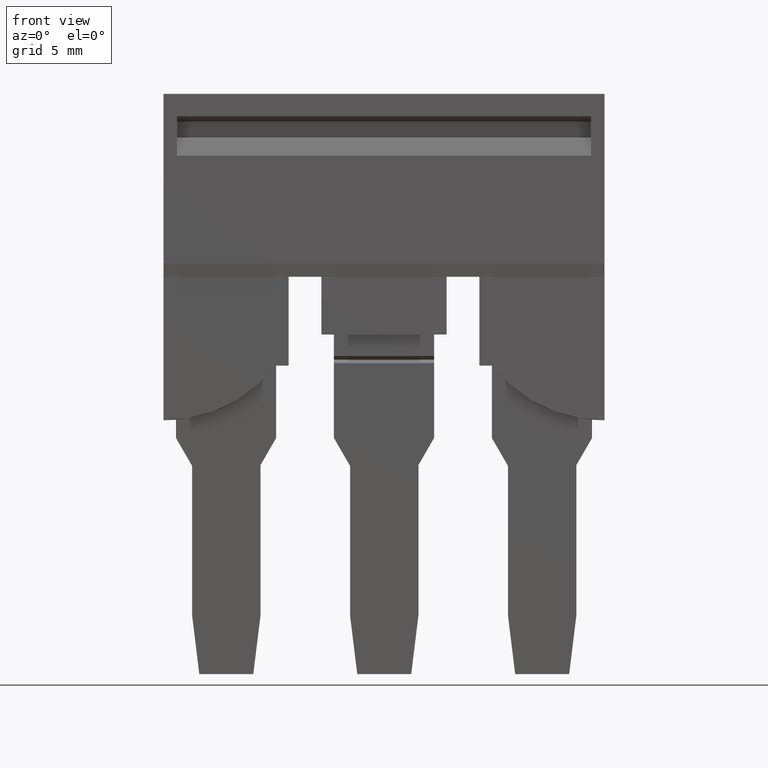
[diagram: clean part render]
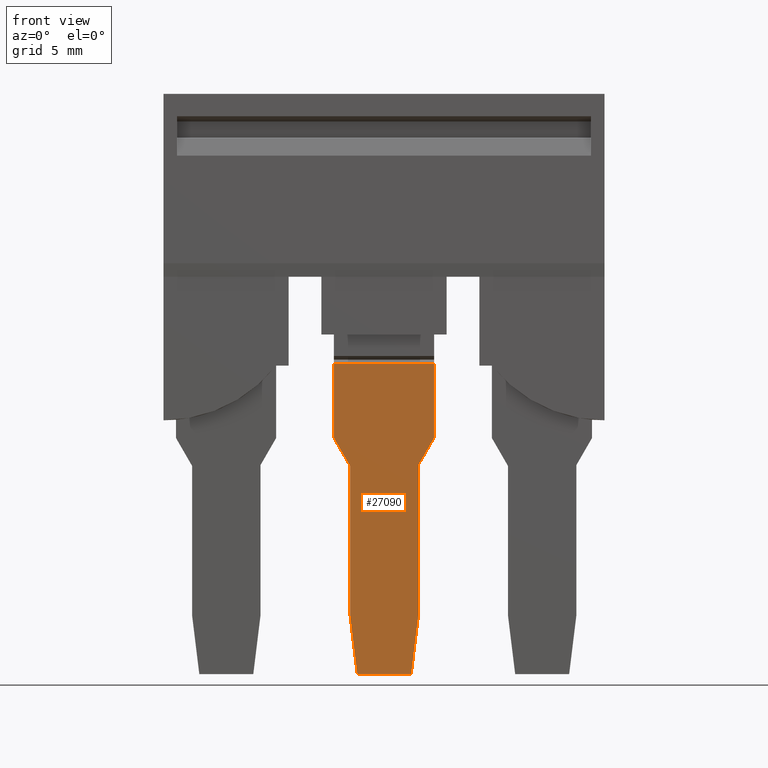
[diagram: same view with one face highlighted and labeled with its STEP entity id]
A machine part, front view. The second image highlights one B-rep face of the part: STEP entity #27090.
In plain terms, the highlighted planar face has unit normal (-0, -1, -0).
Its self-contained STEP definition (entity closure, byte-faithful):
#1590=CARTESIAN_POINT('',(4.98553886079777,-23.8389640912953,
57.8599999999952));
#1600=VERTEX_POINT('',#1590);
#1650=CARTESIAN_POINT('',(4.98553886079778,-34.1523076176597,
51.9055883388038));
#1660=DIRECTION('',(-2.94719322334619E-16,0.866025403784444,
0.499999999999991));
#1670=VECTOR('',#1660,1.);
#1680=LINE('',#1650,#1670);
#1690=CARTESIAN_POINT('',(4.98553886079777,-25.2938867696535,
57.019999999995));
#1700=VERTEX_POINT('',#1690);
#1710=EDGE_CURVE('',#1700,#1600,#1680,.T.);
#7150=CARTESIAN_POINT('',(4.98553886079778,-19.9538803596619,
52.6599999999952));
#7160=VERTEX_POINT('',#7150);
#7190=CARTESIAN_POINT('',(4.98553886079776,-19.9538803596615,
85.920265839815));
#7200=DIRECTION('',(6.12258769595452E-16,-1.01023885312291E-14,-1.));
#7210=VECTOR('',#7200,1.);
#7220=LINE('',#7190,#7210);
#7230=CARTESIAN_POINT('',(4.98553886079777,-19.9538803596618,
57.8599999999952));
#7240=VERTEX_POINT('',#7230);
#7250=EDGE_CURVE('',#7240,#7160,#7220,.T.);
#12370=CARTESIAN_POINT('',(4.98553886079778,-25.2419252453499,
53.4699999999523));
#12380=VERTEX_POINT('',#12370);
#12430=CARTESIAN_POINT('',(4.98553886079777,-34.1523076176596,
58.6144116611879));
#12440=DIRECTION('',(-2.94719322334618E-16,-0.866025403784434,
0.500000000000008));
#12450=VECTOR('',#12440,1.);
#12460=LINE('',#12430,#12450);
#12470=CARTESIAN_POINT('',(4.98553886079778,-23.838964091294,
52.6599999999955));
#12480=VERTEX_POINT('',#12470);
#12490=EDGE_CURVE('',#12480,#12380,#12460,.T.);
#15930=CARTESIAN_POINT('',(4.98553886079778,-33.0323992863093,
53.4699999999524));
#15940=VERTEX_POINT('',#15930);
#15970=CARTESIAN_POINT('',(4.98553886079778,-24.2417559473248,
53.4699999999523));
#15980=DIRECTION('',(3.97814054026963E-18,1.,-9.57674695145351E-15));
#15990=VECTOR('',#15980,1.);
#16000=LINE('',#15970,#15990);
#16010=EDGE_CURVE('',#15940,#12380,#16000,.T.);
#24760=CARTESIAN_POINT('',(4.98553886079777,-34.1523076176596,
57.8599999999953));
#24770=DIRECTION('',(-3.97814054026855E-18,-1.,7.28999943857991E-15));
#24780=VECTOR('',#24770,1.);
#24790=LINE('',#24760,#24780);
#24800=EDGE_CURVE('',#7240,#1600,#24790,.T.);
#25380=CARTESIAN_POINT('',(4.98553886079778,-24.2417559473248,
52.6599999999954));
#25390=DIRECTION('',(3.97814054027112E-18,1.,-1.21499990642998E-14));
#25400=VECTOR('',#25390,1.);
#25410=LINE('',#25380,#25400);
#25420=EDGE_CURVE('',#12480,#7160,#25410,.T.);
#26230=CARTESIAN_POINT('',(4.98553886079777,-12.8979338181015,
57.0199999999949));
#26240=DIRECTION('',(3.97814054027038E-18,1.,-9.86325155142624E-15));
#26250=VECTOR('',#26240,1.);
#26260=LINE('',#26230,#26250);
#26270=CARTESIAN_POINT('',(4.98553886079777,-33.0792532827656,
57.0199999999951));
#26280=VERTEX_POINT('',#26270);
#26290=EDGE_CURVE('',#26280,#1700,#26260,.T.);
#26580=CARTESIAN_POINT('',(4.98553886079777,-36.0978098180791,
56.6493678612461));
#26590=VERTEX_POINT('',#26580);
#26640=CARTESIAN_POINT('',(4.98553886079777,-12.8979338181015,
59.4979544489049));
#26650=DIRECTION('',(-8.32667268468867E-17,0.992546151641323,
0.121869343405138));
#26660=VECTOR('',#26650,1.);
#26670=LINE('',#26640,#26660);
#26680=EDGE_CURVE('',#26590,#26280,#26670,.T.);
#26800=CARTESIAN_POINT('',(4.98553886079778,-28.3075095874674,
53.8280089999944));
#26810=DIRECTION('',(1.,-3.97814054026375E-18,6.12258769595452E-16));
#26820=DIRECTION('',(3.97814054027574E-18,1.,-1.95846419108003E-14));
#26830=AXIS2_PLACEMENT_3D('',#26800,#26810,#26820);
#26840=PLANE('',#26830);
#26850=ORIENTED_EDGE('',*,*,#26680,.F.);
#26860=ORIENTED_EDGE('',*,*,#26290,.F.);
#26870=ORIENTED_EDGE('',*,*,#1710,.F.);
#26880=ORIENTED_EDGE('',*,*,#24800,.T.);
#26890=ORIENTED_EDGE('',*,*,#7250,.F.);
#26900=ORIENTED_EDGE('',*,*,#25420,.T.);
#26910=ORIENTED_EDGE('',*,*,#12490,.F.);
#26920=ORIENTED_EDGE('',*,*,#16010,.T.);
#26930=CARTESIAN_POINT('',(4.98553886079778,-24.3577888801292,
52.4048917702257));
#26940=DIRECTION('',(7.2529646010219E-17,0.992546151641321,
-0.121869343405157));
#26950=VECTOR('',#26940,1.);
#26960=LINE('',#26930,#26950);
#26970=CARTESIAN_POINT('',(4.98553886079778,-36.0978098182131,
53.8463850860994));
#26980=VERTEX_POINT('',#26970);
#26990=EDGE_CURVE('',#26980,#15940,#26960,.T.);
#27000=ORIENTED_EDGE('',*,*,#26990,.T.);
#27010=CARTESIAN_POINT('',(4.98553886079779,-36.0978098189294,
38.8749840000005));
#27020=DIRECTION('',(-6.12258769597219E-16,4.78387892587514E-11,1.));
#27030=VECTOR('',#27020,1.);
#27040=LINE('',#27010,#27030);
#27050=EDGE_CURVE('',#26980,#26590,#27040,.T.);
#27060=ORIENTED_EDGE('',*,*,#27050,.F.);
#27070=EDGE_LOOP('',(#27060,#27000,#26920,#26910,#26900,#26890,#26880,
#26870,#26860,#26850));
#27080=FACE_OUTER_BOUND('',#27070,.T.);
#27090=ADVANCED_FACE('',(#27080),#26840,.T.);